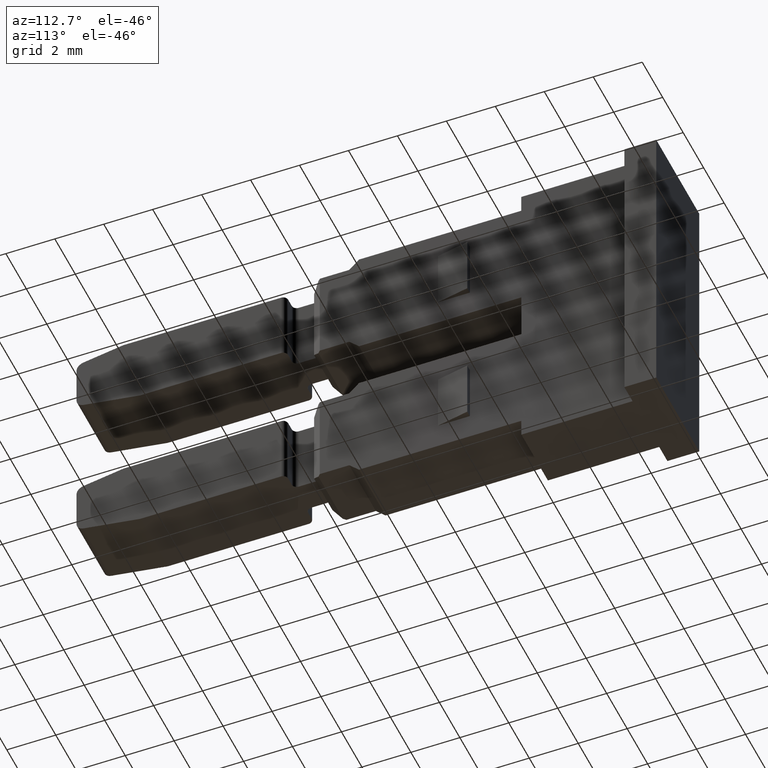
[diagram: clean part render]
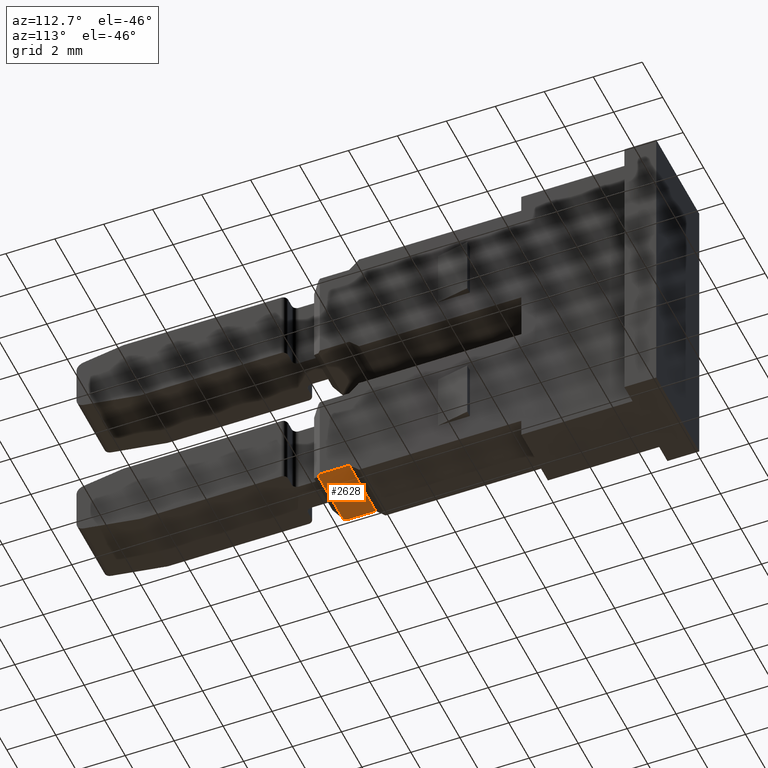
[diagram: same view with one face highlighted and labeled with its STEP entity id]
A machine part, auxiliary view. The second image highlights one B-rep face of the part: STEP entity #2628.
In plain terms, the highlighted planar face has unit normal (0, -0, -1).
Its self-contained STEP definition (entity closure, byte-faithful):
#61 = EDGE_LOOP ( 'NONE', ( #868, #869, #851, #902, #865, #848 ) ) ;
#149 = CARTESIAN_POINT ( 'NONE',  ( 1393.282307071730000, 1063.777099732511900, -1.950000000030388100 ) ) ;
#156 = CARTESIAN_POINT ( 'NONE',  ( 1390.782572619766800, 1063.877098784088700, -1.950000000030801300 ) ) ;
#161 = CARTESIAN_POINT ( 'NONE',  ( 1390.782561219938800, 1065.079123439797700, -1.950000000030730700 ) ) ;
#197 = CARTESIAN_POINT ( 'NONE',  ( 1393.382319419673200, 1065.079098784066700, -1.950000000030728900 ) ) ;
#214 = CARTESIAN_POINT ( 'NONE',  ( 1393.382308020078900, 1063.877098784089600, -1.950000000030507100 ) ) ;
#246 = CARTESIAN_POINT ( 'NONE',  ( 1390.882550808740000, 1063.777122491454700, -1.950000000030783800 ) ) ;
#265 = LINE ( 'NONE', #336, #2353 ) ;
#318 = DIRECTION ( 'NONE',  ( 0.7071134872533426700, 0.7071000750561526900, 0.0000000000000000000 ) ) ;
#319 = CARTESIAN_POINT ( 'NONE',  ( 1390.882550808740000, 1063.777122491454700, -1.950000000030800900 ) ) ;
#322 = LINE ( 'NONE', #319, #2355 ) ;
#336 = CARTESIAN_POINT ( 'NONE',  ( 1392.982304226553400, 1063.477102577648600, -1.950000000030507100 ) ) ;
#340 = DIRECTION ( 'NONE',  ( -0.7071134872522599800, 0.7071000750572354900, -3.067983329797030000E-015 ) ) ;
#369 = DIRECTION ( 'NONE',  ( -9.483855583750710300E-006, -0.9999999999550282000, 2.389095031153598600E-030 ) ) ;
#371 = CARTESIAN_POINT ( 'NONE',  ( 1393.382319421650900, 1065.079307296093500, -1.950000000030796700 ) ) ;
#375 = LINE ( 'NONE', #371, #2381 ) ;
#403 = VERTEX_POINT ( 'NONE', #156 ) ;
#416 = VERTEX_POINT ( 'NONE', #161 ) ;
#437 = VERTEX_POINT ( 'NONE', #149 ) ;
#448 = VERTEX_POINT ( 'NONE', #197 ) ;
#457 = VERTEX_POINT ( 'NONE', #246 ) ;
#462 = VERTEX_POINT ( 'NONE', #214 ) ;
#848 = ORIENTED_EDGE ( 'NONE', *, *, #2455, .F. ) ;
#851 = ORIENTED_EDGE ( 'NONE', *, *, #2428, .F. ) ;
#865 = ORIENTED_EDGE ( 'NONE', *, *, #2393, .F. ) ;
#868 = ORIENTED_EDGE ( 'NONE', *, *, #2396, .T. ) ;
#869 = ORIENTED_EDGE ( 'NONE', *, *, #2676, .T. ) ;
#902 = ORIENTED_EDGE ( 'NONE', *, *, #2418, .T. ) ;
#968 = CARTESIAN_POINT ( 'NONE',  ( 1390.782561220172500, 1065.079098784066700, -1.950000000030801100 ) ) ;
#983 = DIRECTION ( 'NONE',  ( -9.483855583750710300E-006, 0.9999999999550282000, -3.252725060354459100E-020 ) ) ;
#1006 = LINE ( 'NONE', #968, #2292 ) ;
#1166 = CARTESIAN_POINT ( 'NONE',  ( 1393.332320368061100, 1065.079099258250400, -1.950000000030728900 ) ) ;
#1175 = DIRECTION ( 'NONE',  ( -0.9999999999550282000, 9.483855579765008700E-006, -6.939562466272956300E-016 ) ) ;
#1180 = LINE ( 'NONE', #1166, #2390 ) ;
#1245 = LINE ( 'NONE', #1248, #2060 ) ;
#1248 = CARTESIAN_POINT ( 'NONE',  ( 1390.882550808740000, 1063.777122491454700, -1.950000000030758200 ) ) ;
#1265 = DIRECTION ( 'NONE',  ( 0.9999999999550282000, -9.483855864170154500E-006, 2.642107618258721600E-013 ) ) ;
#1878 = PLANE ( 'NONE',  #2254 ) ;
#1882 = DIRECTION ( 'NONE',  ( -1.000000000000000000, 0.0000000000000000000, -1.714874837238479900E-015 ) ) ;
#1886 = CARTESIAN_POINT ( 'NONE',  ( 1403.075439162830000, 1065.079215367945800, -1.950000000030780000 ) ) ;
#1888 = FACE_OUTER_BOUND ( 'NONE', #61, .T. ) ;
#1915 = DIRECTION ( 'NONE',  ( 1.714874837238479900E-015, -1.626362530369825000E-020, -1.000000000000000000 ) ) ;
#2060 = VECTOR ( 'NONE', #1265, 1000.000000000000000 ) ;
#2254 = AXIS2_PLACEMENT_3D ( 'NONE', #1886, #1915, #1882 ) ;
#2292 = VECTOR ( 'NONE', #983, 1000.000000000000200 ) ;
#2353 = VECTOR ( 'NONE', #318, 1000.000000000000000 ) ;
#2355 = VECTOR ( 'NONE', #340, 1000.000000000000100 ) ;
#2381 = VECTOR ( 'NONE', #369, 1000.000000000000200 ) ;
#2390 = VECTOR ( 'NONE', #1175, 1000.000000000000100 ) ;
#2393 = EDGE_CURVE ( 'NONE', #437, #462, #265, .T. ) ;
#2396 = EDGE_CURVE ( 'NONE', #457, #403, #322, .T. ) ;
#2418 = EDGE_CURVE ( 'NONE', #448, #462, #375, .T. ) ;
#2428 = EDGE_CURVE ( 'NONE', #448, #416, #1180, .T. ) ;
#2455 = EDGE_CURVE ( 'NONE', #457, #437, #1245, .T. ) ;
#2628 = ADVANCED_FACE ( 'NONE', ( #1888 ), #1878, .T. ) ;
#2676 = EDGE_CURVE ( 'NONE', #403, #416, #1006, .T. ) ;